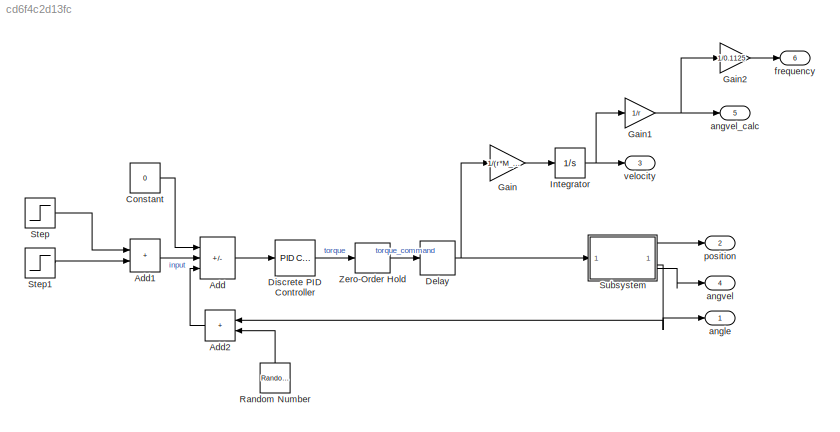
MODEL slx_cd6f4c2d13fc
KIND model
CONFIG AbsTol = auto
CONFIG EnableMultiTasking = off
CONFIG FixedStep = 0.0001
CONFIG MaxStep = auto
CONFIG MinStep = auto
CONFIG RelTol = 1e-3
CONFIG SampleTimeConstraint = Unconstrained
CONFIG SolverName = ode4
CONFIG StartTime = 0.0
CONFIG StopTime = 5
BLOCK [Sum] Add
  IconShape = rectangular
  Inputs = ++-
BLOCK [Sum] Add1
  IconShape = rectangular
BLOCK [Sum] Add2
  IconShape = rectangular
  NameLocation = top
BLOCK [Constant] Constant
  Value = 0
BLOCK [Delay] Delay
  DelayLength = 1
  InputPortMap = u0
BLOCK [Reference] Discrete PID Controller  REF=slpidlib/PID Controller
  LibrarySourceBlock = simulink/Discrete/Discrete PID Controller
  SourceBlock = slpidlib/PID Controller
  SourceType = PID 1dof
BLOCK [Gain] Gain
  Gain = 1/(r*M_body+2*M_wheel)
BLOCK [Gain] Gain1
  Gain = 1/r
BLOCK [Gain] Gain2
  Gain = 1/0.1125
BLOCK [Integrator] Integrator
BLOCK [RandomNumber] Random Number
  Commented = on
  NameLocation = right
  SampleTime = dt*10
  Variance = 0.0001
BLOCK [Step] Step
  After = initial_angle
  SampleTime = dt
BLOCK [Step] Step1
  After = -initial_angle
  SampleTime = dt
  Time = 1.01
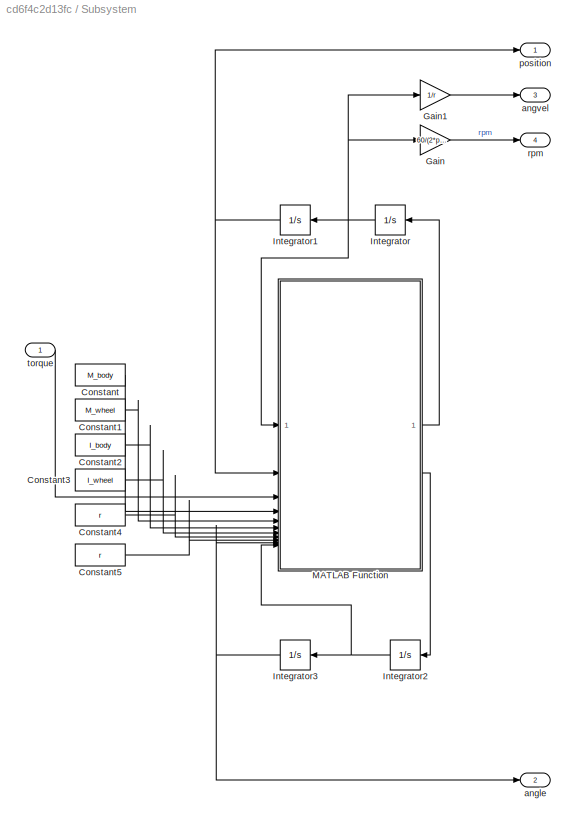
BLOCK [SubSystem] Subsystem
BLOCK [Constant] Subsystem/Constant
  Value = M_body
BLOCK [Constant] Subsystem/Constant1
  Value = M_wheel
BLOCK [Constant] Subsystem/Constant2
  Value = I_body
BLOCK [Constant] Subsystem/Constant3
  Value = I_wheel
BLOCK [Constant] Subsystem/Constant4
  Value = r
BLOCK [Constant] Subsystem/Constant5
  Value = r
BLOCK [Gain] Subsystem/Gain
  Gain = 60/(2*pi*r)
BLOCK [Gain] Subsystem/Gain1
  Gain = 1/r
BLOCK [Integrator] Subsystem/Integrator
  NameLocation = top
BLOCK [Integrator] Subsystem/Integrator1
  NameLocation = top
BLOCK [Integrator] Subsystem/Integrator2
  NameLocation = top
BLOCK [Integrator] Subsystem/Integrator3
  NameLocation = top
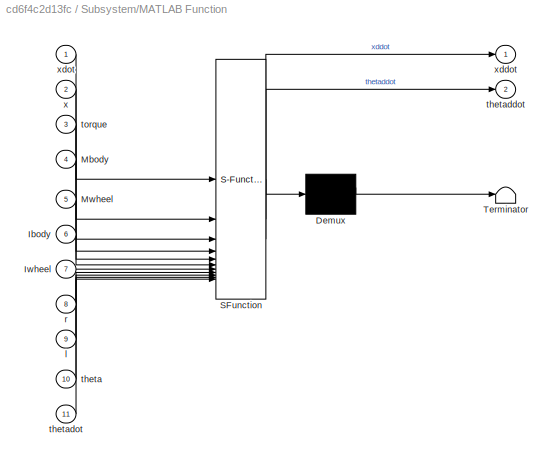
BLOCK [SubSystem] Subsystem/MATLAB Function
  ErrorFcn = Stateflow.Translate.translate
  PermitHierarchicalResolution = ExplicitOnly
  SFBlockType = MATLAB Function
  TreatAsAtomicUnit = on
BLOCK [Demux] Subsystem/MATLAB Function/ Demux 
  Outputs = 1
BLOCK [S-Function] Subsystem/MATLAB Function/ SFunction 
  EnableBusSupport = on
  FunctionName = sf_sfun
  PortCounts = [11 3]
  SFcnIsStateOwnerBlock = off
  SFunctionDeploymentMode = off
  Tag = Stateflow S-Function 2
BLOCK [Terminator] Subsystem/MATLAB Function/ Terminator 
BLOCK [Inport] Subsystem/MATLAB Function/Ibody
  Port = 6
BLOCK [Inport] Subsystem/MATLAB Function/Iwheel
  Port = 7
BLOCK [Inport] Subsystem/MATLAB Function/Mbody
  Port = 4
BLOCK [Inport] Subsystem/MATLAB Function/Mwheel
  Port = 5
BLOCK [Inport] Subsystem/MATLAB Function/l
  Port = 9
BLOCK [Inport] Subsystem/MATLAB Function/r
  Port = 8
BLOCK [Inport] Subsystem/MATLAB Function/theta
  Port = 10
BLOCK [Outport] Subsystem/MATLAB Function/thetaddot
  Port = 2
BLOCK [Inport] Subsystem/MATLAB Function/thetadot
  Port = 11
BLOCK [Inport] Subsystem/MATLAB Function/torque
  Port = 3
BLOCK [Inport] Subsystem/MATLAB Function/x
  Port = 2
BLOCK [Outport] Subsystem/MATLAB Function/xddot
BLOCK [Inport] Subsystem/MATLAB Function/xdot
BLOCK [Outport] Subsystem/angle
  NameLocation = top
  Port = 2
BLOCK [Outport] Subsystem/angvel
  Port = 3
BLOCK [Outport] Subsystem/position
BLOCK [Outport] Subsystem/rpm
  Port = 4
BLOCK [Inport] Subsystem/torque
BLOCK [ZeroOrderHold] Zero-Order Hold
  SampleTime = -1
BLOCK [Outport] angle
BLOCK [Outport] angvel
  Port = 4
BLOCK [Outport] angvel_calc
  Port = 5
BLOCK [Outport] frequency
  Port = 6
BLOCK [Outport] position
  Port = 2
BLOCK [Outport] velocity
  Port = 3
LINE Add1:1 -> Add:2
LINE Add2:1 -> Add:3
LINE Add:1 -> Discrete PID Controller:1
LINE Constant:1 -> Add:1
NET Delay:1 -> Gain:1, Subsystem:1
LINE Discrete PID Controller:1 -> Zero-Order Hold:1
NET Gain1:1 -> Gain2:1, angvel_calc:1
LINE Gain2:1 -> frequency:1
LINE Gain:1 -> Integrator:1
NET Integrator:1 -> Gain1:1, velocity:1
LINE Random Number:1 -> Add2:2
LINE Step1:1 -> Add1:2
LINE Step:1 -> Add1:1
LINE Subsystem/Constant1:1 -> Subsystem/MATLAB Function:5
LINE Subsystem/Constant2:1 -> Subsystem/MATLAB Function:6
LINE Subsystem/Constant3:1 -> Subsystem/MATLAB Function:7
LINE Subsystem/Constant4:1 -> Subsystem/MATLAB Function:8
LINE Subsystem/Constant5:1 -> Subsystem/MATLAB Function:9
LINE Subsystem/Constant:1 -> Subsystem/MATLAB Function:4
LINE Subsystem/Gain1:1 -> Subsystem/angvel:1
LINE Subsystem/Gain:1 -> Subsystem/rpm:1
NET Subsystem/Integrator1:1 -> Subsystem/MATLAB Function:2, Subsystem/position:1
NET Subsystem/Integrator2:1 -> Subsystem/Integrator3:1, Subsystem/MATLAB Function:11
NET Subsystem/Integrator3:1 -> Subsystem/MATLAB Function:10, Subsystem/angle:1
NET Subsystem/Integrator:1 -> Subsystem/Gain1:1, Subsystem/Gain:1, Subsystem/Integrator1:1, Subsystem/MATLAB Function:1
LINE Subsystem/MATLAB Function:1 -> Subsystem/Integrator:1
LINE Subsystem/MATLAB Function:2 -> Subsystem/Integrator2:1
LINE Subsystem/torque:1 -> Subsystem/MATLAB Function:3
LINE Subsystem:1 -> position:1
NET Subsystem:2 -> Add2:1, angle:1
LINE Subsystem:3 -> angvel:1
LINE Zero-Order Hold:1 -> Delay:1
note: NET lines group one-source signal fan-out (src -> all destinations, sorted); 1:1 wires keep LINE
CHART Subsystem/MATLAB Function states=1 transitions=1
  STATE_LABEL 'eML_blk_kernel()'
  STATE_LABEL 'SCRIPT:\nfunction [xddot, thetaddot]= fcn(xdot, x, torque, Mbody, Mwheel, Ibody, Iwheel, r, l,theta, thetadot)\n\n% friction\nb = 0.1;\n% acceleration of gravity\ng = 9.81;\n\n%{\n% commonly seen coeff\ncoeff_Ib_mbl2 = I_body + M_body*(l^2)\ncoeff_mb_Iw_mw = M_body + 2*I_wheel/(r^2) + 2*M_wheel\ncoeff_mb_l = M_body*l\ncoeff_mb2_l2 = coeff_mb_l^2\n\nxddot = (1/coeff_mb_Iw_mw) * ( -coeff_mb_l*thetaddot_old*cos(the...<+810ch>'
CHART  states=0 transitions=0
